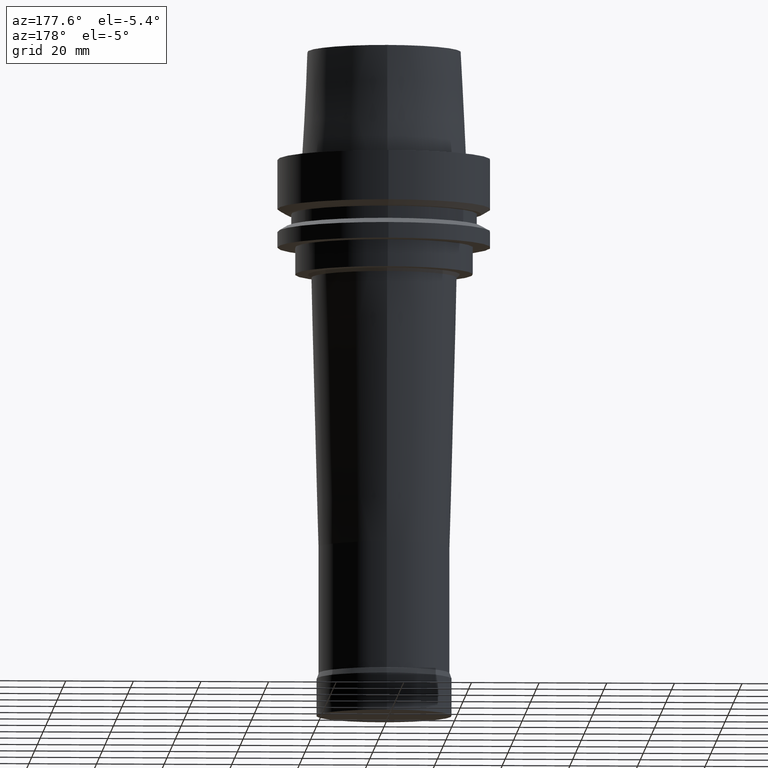
[diagram: clean part render]
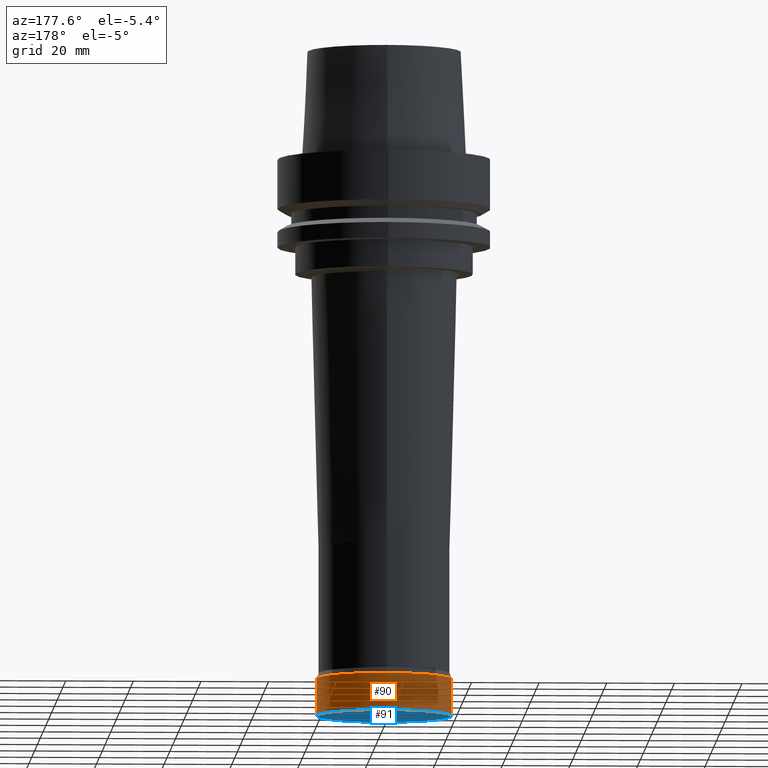
[diagram: same view with the hole feature highlighted: cylindrical wall and planar end face, labeled with their STEP entity ids]
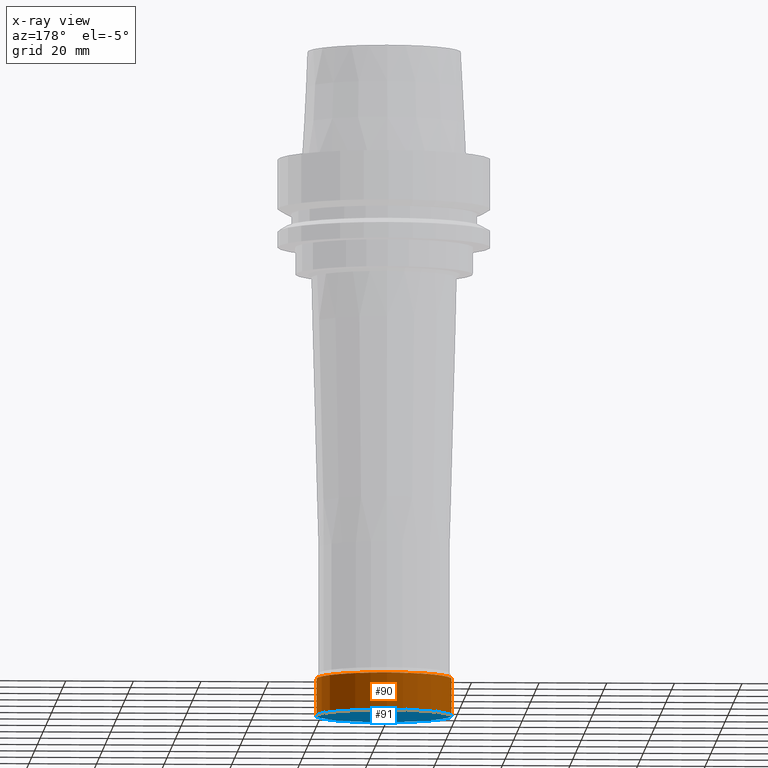
[diagram: x-ray of the same camera — body ghosted, the hole faces saturated]
A machine part, auxiliary view. The highlighted faces form one hole feature of diameter 40 mm: the cylindrical wall (entity #90, orange) and its adjacent planar end face (entity #91, blue) — they share a circular edge in the B-rep.
The next image is the same camera in x-ray (body ghosted, the hole faces saturated) — the bore reads through the body.
Wall:
#90=ADVANCED_FACE('',(#140,#141),#142,.T.);
#140=FACE_BOUND('',#195,.T.);
#141=FACE_BOUND('',#196,.T.);
#142=CYLINDRICAL_SURFACE('',#197,20.0);
#195=EDGE_LOOP('',(#280));
#196=EDGE_LOOP('',(#281));
#197=AXIS2_PLACEMENT_3D('',#282,#283,#284);
#280=ORIENTED_EDGE('',*,*,#314,.F.);
#281=ORIENTED_EDGE('',*,*,#313,.T.);
#282=CARTESIAN_POINT('',(9.76655822320014E-015,1.95331164464003E-014,-159.5));
#283=DIRECTION('',(-6.12323399573677E-017,-1.22464679914735E-016,1.0));
#284=DIRECTION('',(-1.23259516440783E-032,1.0,1.22464679914735E-016));
#313=EDGE_CURVE('',#346,#346,#347,.T.);
#314=EDGE_CURVE('',#348,#348,#349,.T.);
#346=VERTEX_POINT('',#382);
#347=CIRCLE('',#383,20.0);
#348=VERTEX_POINT('',#384);
#349=CIRCLE('',#385,20.0);
#382=CARTESIAN_POINT('',(9.42978035343462E-015,20.0,-154.0));
#383=AXIS2_PLACEMENT_3D('',#433,#434,#435);
#384=CARTESIAN_POINT('',(1.01033360929657E-014,20.0,-165.0));
#385=AXIS2_PLACEMENT_3D('',#436,#437,#438);
#433=CARTESIAN_POINT('',(9.42978035343462E-015,1.88595607068692E-014,-154.0));
#434=DIRECTION('',(6.12323399573677E-017,1.22464679914735E-016,-1.0));
#435=DIRECTION('',(-1.23259516440783E-032,1.0,1.22464679914735E-016));
#436=CARTESIAN_POINT('',(1.01033360929657E-014,2.02066721859313E-014,-165.0));
#437=DIRECTION('',(6.12323399573677E-017,1.22464679914735E-016,-1.0));
#438=DIRECTION('',(-1.23259516440783E-032,1.0,1.22464679914735E-016));
End face:
#91=ADVANCED_FACE('',(#143),#144,.T.);
#143=FACE_OUTER_BOUND('',#198,.T.);
#144=PLANE('',#199);
#198=EDGE_LOOP('',(#285));
#199=AXIS2_PLACEMENT_3D('',#286,#287,#288);
#285=ORIENTED_EDGE('',*,*,#314,.T.);
#286=CARTESIAN_POINT('',(1.01033360929657E-014,10.0,-165.0));
#287=DIRECTION('',(6.12323399573677E-017,1.22464679914735E-016,-1.0));
#288=DIRECTION('',(-1.23259516440783E-032,1.0,1.22464679914735E-016));
#314=EDGE_CURVE('',#348,#348,#349,.T.);
#348=VERTEX_POINT('',#384);
#349=CIRCLE('',#385,20.0);
#384=CARTESIAN_POINT('',(1.01033360929657E-014,20.0,-165.0));
#385=AXIS2_PLACEMENT_3D('',#436,#437,#438);
#436=CARTESIAN_POINT('',(1.01033360929657E-014,2.02066721859313E-014,-165.0));
#437=DIRECTION('',(6.12323399573677E-017,1.22464679914735E-016,-1.0));
#438=DIRECTION('',(-1.23259516440783E-032,1.0,1.22464679914735E-016));